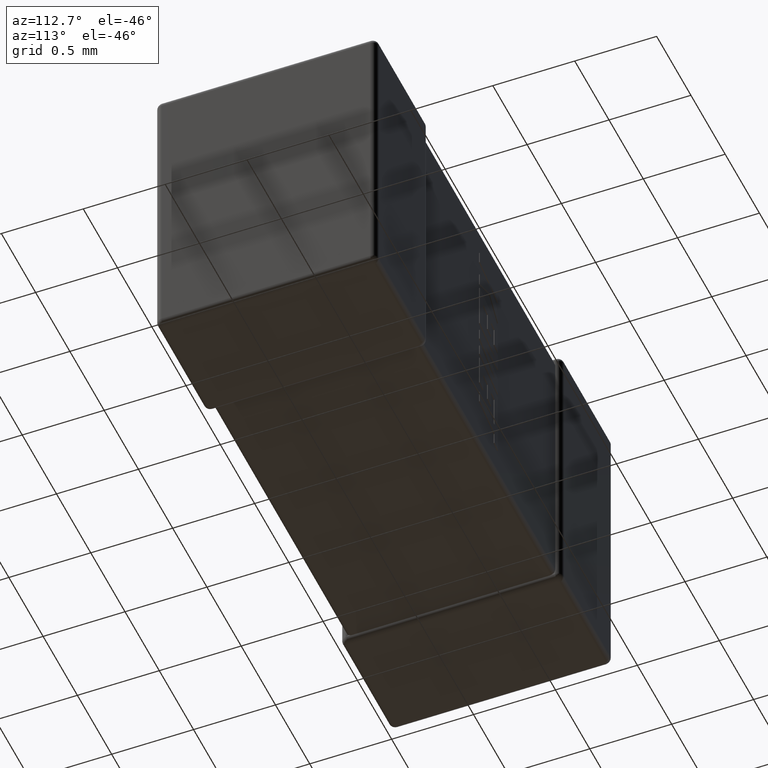
[diagram: clean part render]
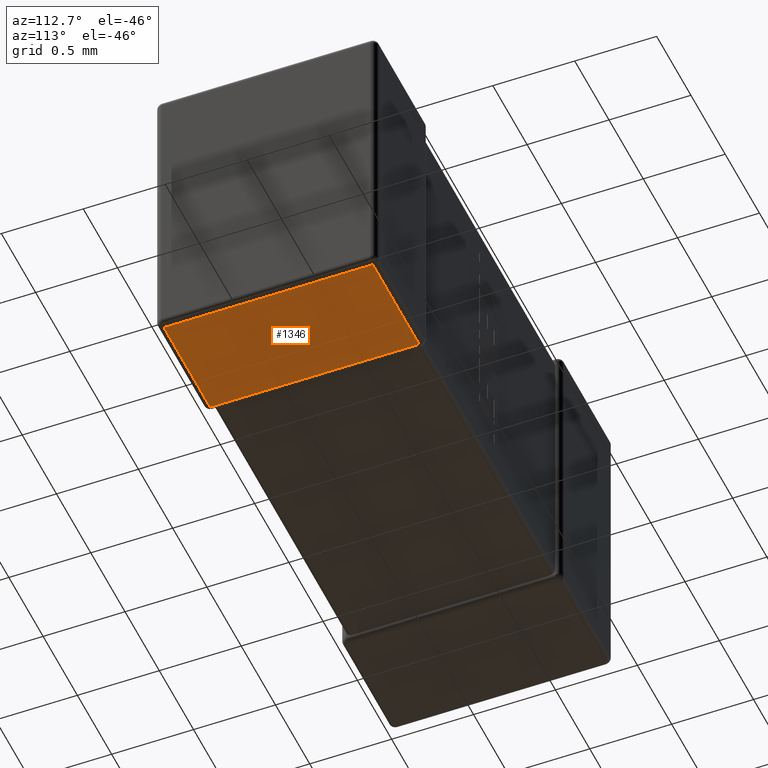
[diagram: same view with one face highlighted and labeled with its STEP entity id]
A machine part, auxiliary view. The second image highlights one B-rep face of the part: STEP entity #1346.
In plain terms, the highlighted planar face has unit normal (0, 0, 1).
Its self-contained STEP definition (entity closure, byte-faithful):
#90 = LINE ( 'NONE', #1518, #933 ) ;
#101 = CARTESIAN_POINT ( 'NONE',  ( 2.737440000000000317, 1.312559999999999949, -1.800000000000000044 ) ) ;
#142 = VERTEX_POINT ( 'NONE', #849 ) ;
#203 = DIRECTION ( 'NONE',  ( 0.000000000000000000, 0.000000000000000000, 1.000000000000000000 ) ) ;
#578 = CARTESIAN_POINT ( 'NONE',  ( 3.450000000000000178, 0.000000000000000000, -1.800000000000000044 ) ) ;
#849 = CARTESIAN_POINT ( 'NONE',  ( 3.412560000000000038, 0.03743999999999998718, -1.800000000000000044 ) ) ;
#912 = FACE_OUTER_BOUND ( 'NONE', #2016, .T. ) ;
#933 = VECTOR ( 'NONE', #2990, 1000.000000000000000 ) ;
#1279 = EDGE_CURVE ( 'NONE', #3060, #142, #90, .T. ) ;
#1335 = DIRECTION ( 'NONE',  ( 1.000000000000000000, 0.000000000000000000, -0.000000000000000000 ) ) ;
#1346 = ADVANCED_FACE ( 'NONE', ( #912 ), #2813, .F. ) ;
#1352 = LINE ( 'NONE', #2834, #1899 ) ;
#1518 = CARTESIAN_POINT ( 'NONE',  ( 3.412560000000000038, 0.000000000000000000, -1.800000000000000044 ) ) ;
#1534 = EDGE_CURVE ( 'NONE', #142, #1921, #1352, .T. ) ;
#1568 = ORIENTED_EDGE ( 'NONE', *, *, #2358, .T. ) ;
#1583 = CARTESIAN_POINT ( 'NONE',  ( 2.737440000000000317, 0.03743999999999998718, -1.800000000000000044 ) ) ;
#1775 = ORIENTED_EDGE ( 'NONE', *, *, #1534, .T. ) ;
#1899 = VECTOR ( 'NONE', #2814, 1000.000000000000000 ) ;
#1919 = CARTESIAN_POINT ( 'NONE',  ( 2.737440000000000317, 0.000000000000000000, -1.800000000000000044 ) ) ;
#1921 = VERTEX_POINT ( 'NONE', #1583 ) ;
#2016 = EDGE_LOOP ( 'NONE', ( #1775, #2860, #1568, #4370 ) ) ;
#2069 = VECTOR ( 'NONE', #3019, 1000.000000000000000 ) ;
#2133 = CARTESIAN_POINT ( 'NONE',  ( 3.412560000000000038, 1.312559999999999949, -1.800000000000000044 ) ) ;
#2358 = EDGE_CURVE ( 'NONE', #4364, #3060, #3941, .T. ) ;
#2628 = LINE ( 'NONE', #1919, #2069 ) ;
#2813 = PLANE ( 'NONE',  #4112 ) ;
#2814 = DIRECTION ( 'NONE',  ( -1.000000000000000000, -0.000000000000000000, 0.000000000000000000 ) ) ;
#2834 = CARTESIAN_POINT ( 'NONE',  ( 3.450000000000000178, 0.03743999999999998718, -1.800000000000000044 ) ) ;
#2860 = ORIENTED_EDGE ( 'NONE', *, *, #3219, .T. ) ;
#2888 = DIRECTION ( 'NONE',  ( 1.000000000000000000, -0.000000000000000000, -0.000000000000000000 ) ) ;
#2965 = CARTESIAN_POINT ( 'NONE',  ( 3.450000000000000178, 1.312559999999999949, -1.800000000000000044 ) ) ;
#2990 = DIRECTION ( 'NONE',  ( -0.000000000000000000, -1.000000000000000000, 0.000000000000000000 ) ) ;
#3019 = DIRECTION ( 'NONE',  ( 0.000000000000000000, 1.000000000000000000, 0.000000000000000000 ) ) ;
#3060 = VERTEX_POINT ( 'NONE', #2133 ) ;
#3219 = EDGE_CURVE ( 'NONE', #1921, #4364, #2628, .T. ) ;
#3941 = LINE ( 'NONE', #2965, #4275 ) ;
#4112 = AXIS2_PLACEMENT_3D ( 'NONE', #578, #203, #1335 ) ;
#4275 = VECTOR ( 'NONE', #2888, 1000.000000000000000 ) ;
#4364 = VERTEX_POINT ( 'NONE', #101 ) ;
#4370 = ORIENTED_EDGE ( 'NONE', *, *, #1279, .T. ) ;